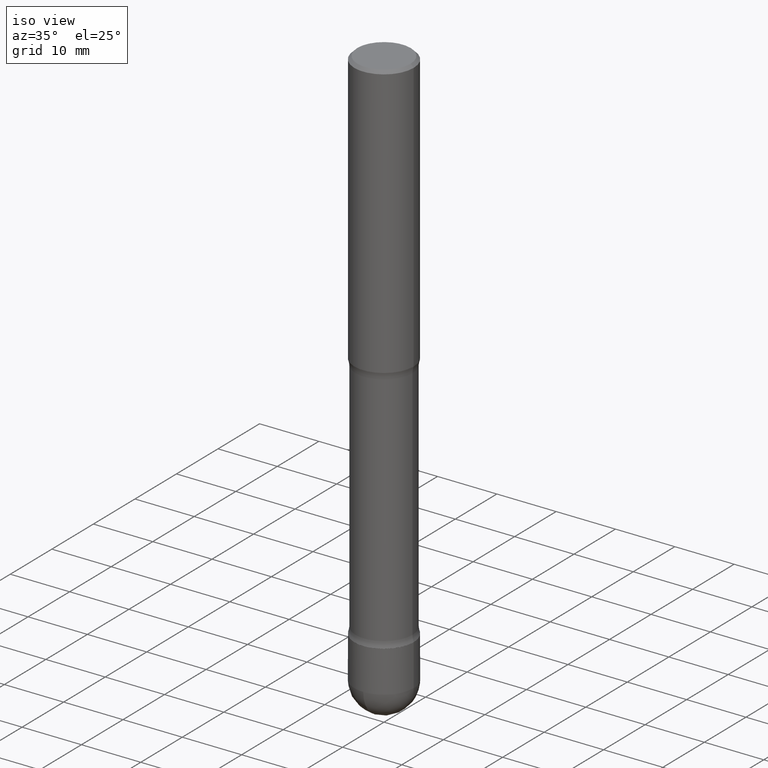
[diagram: clean part render]
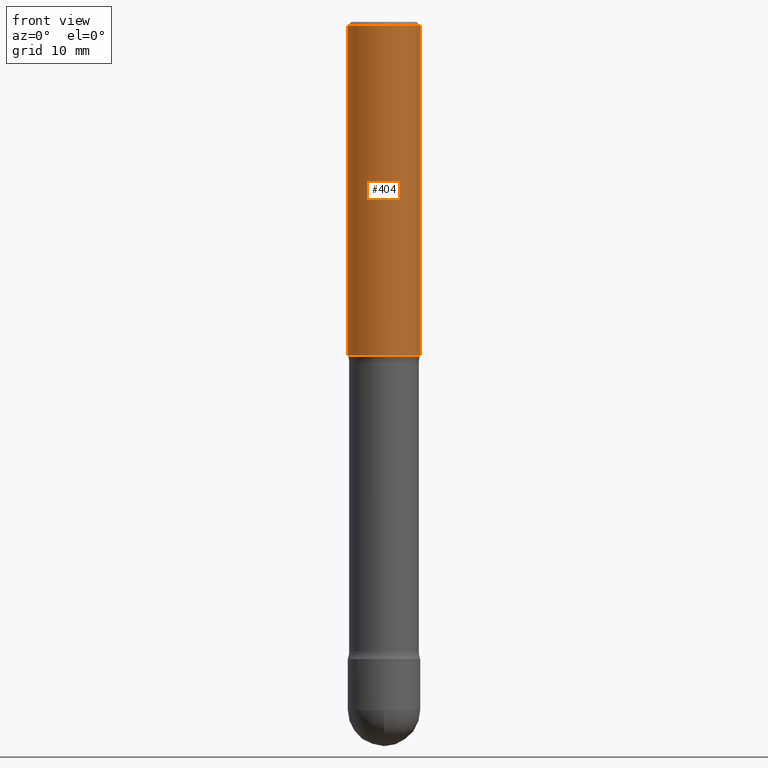
[diagram: tour spotlight — one face highlighted and labeled with its STEP entity id]
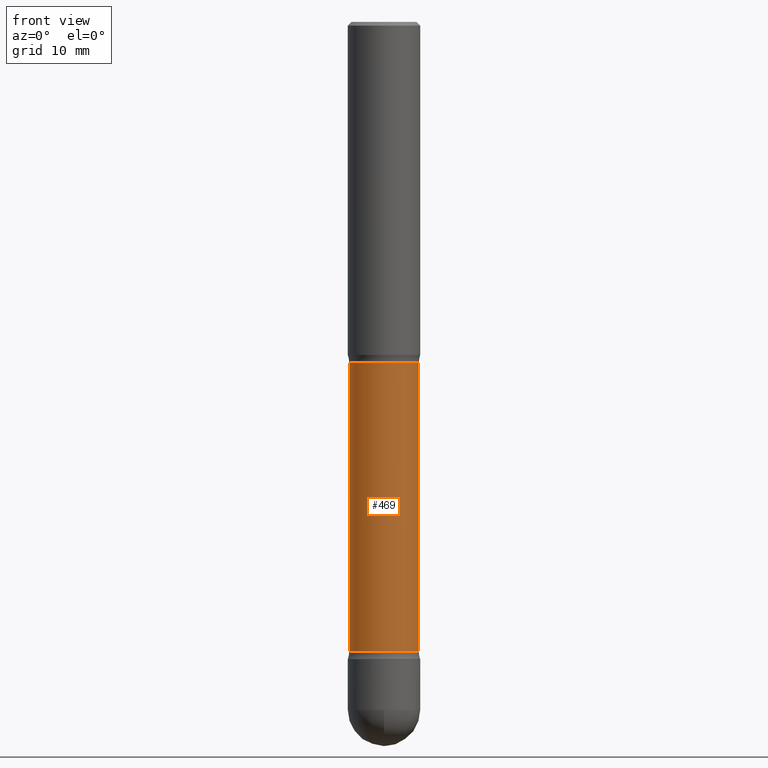
[diagram: tour spotlight — one face highlighted and labeled with its STEP entity id]
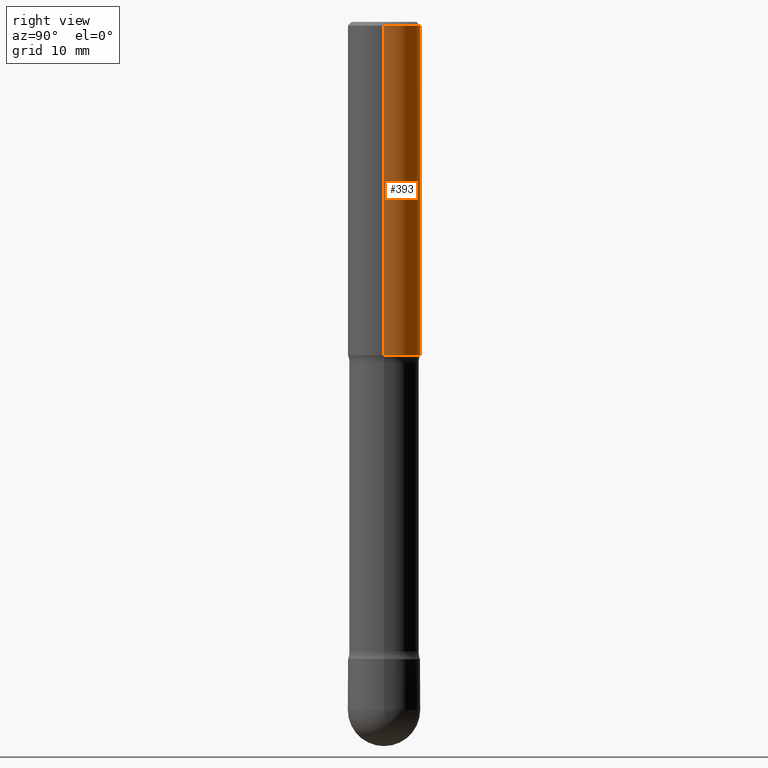
[diagram: tour spotlight — one face highlighted and labeled with its STEP entity id]
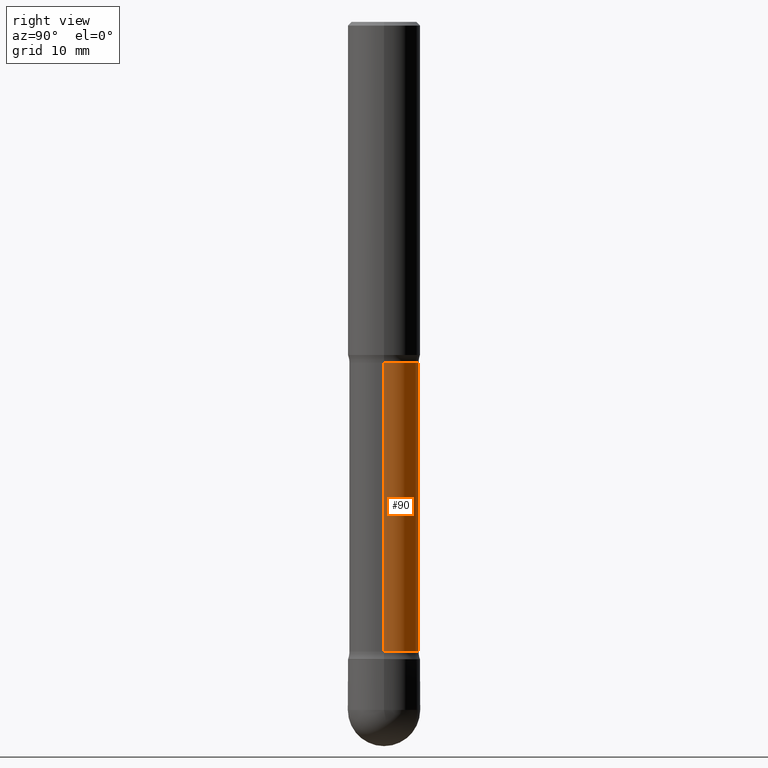
[diagram: tour spotlight — one face highlighted and labeled with its STEP entity id]
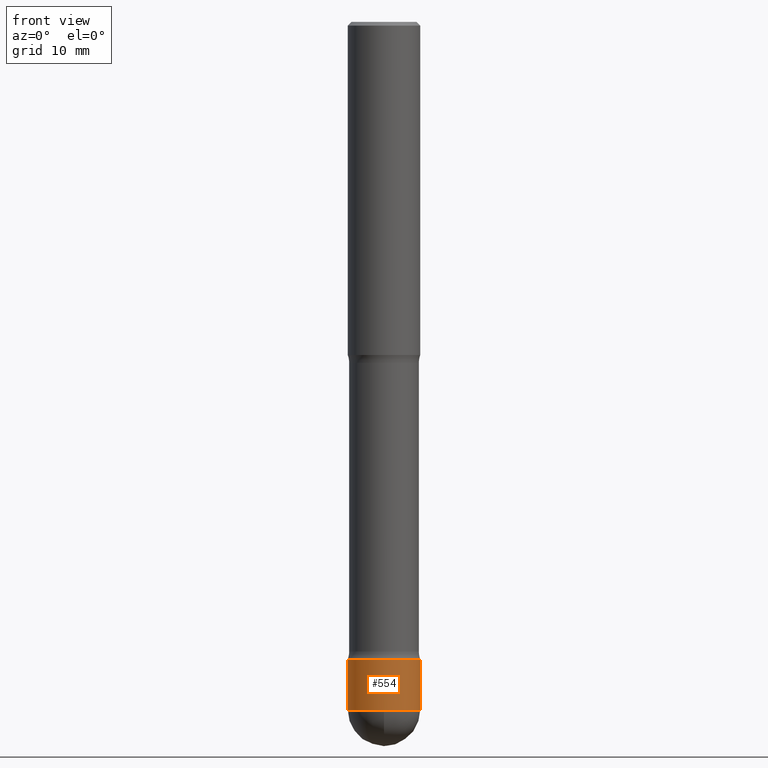
[diagram: tour spotlight — one face highlighted and labeled with its STEP entity id]
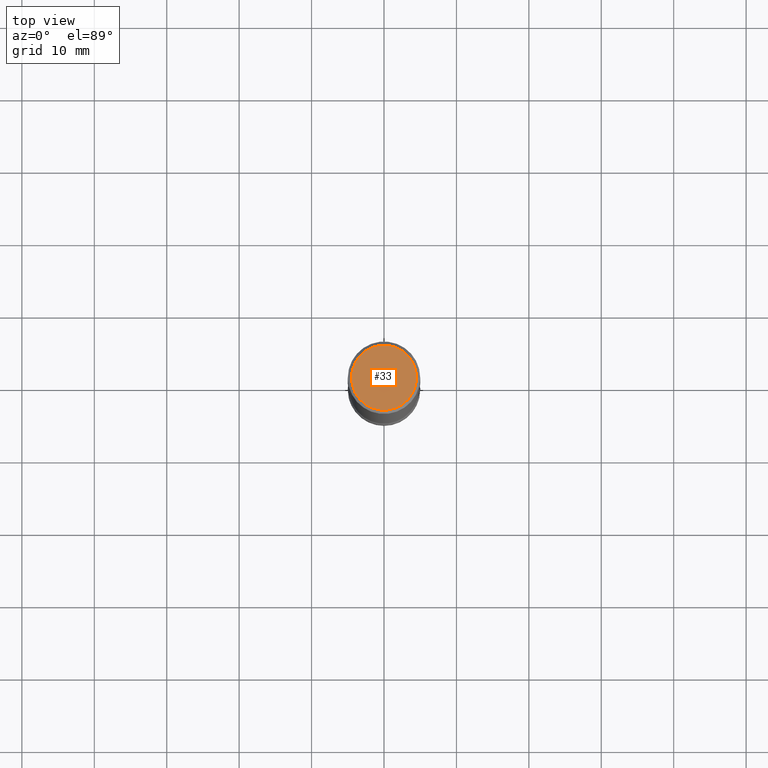
[diagram: tour spotlight — one face highlighted and labeled with its STEP entity id]
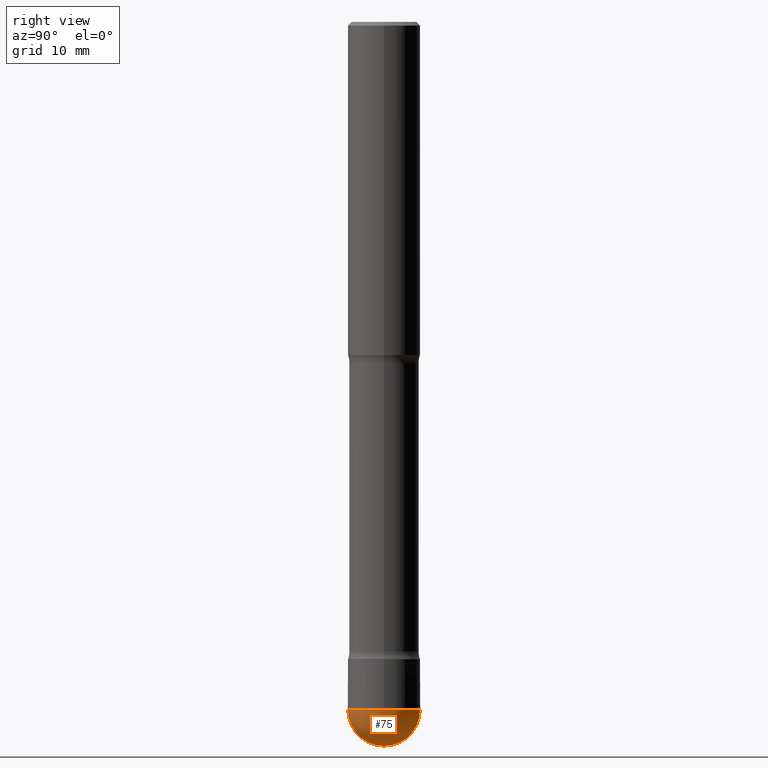
[diagram: tour spotlight — one face highlighted and labeled with its STEP entity id]
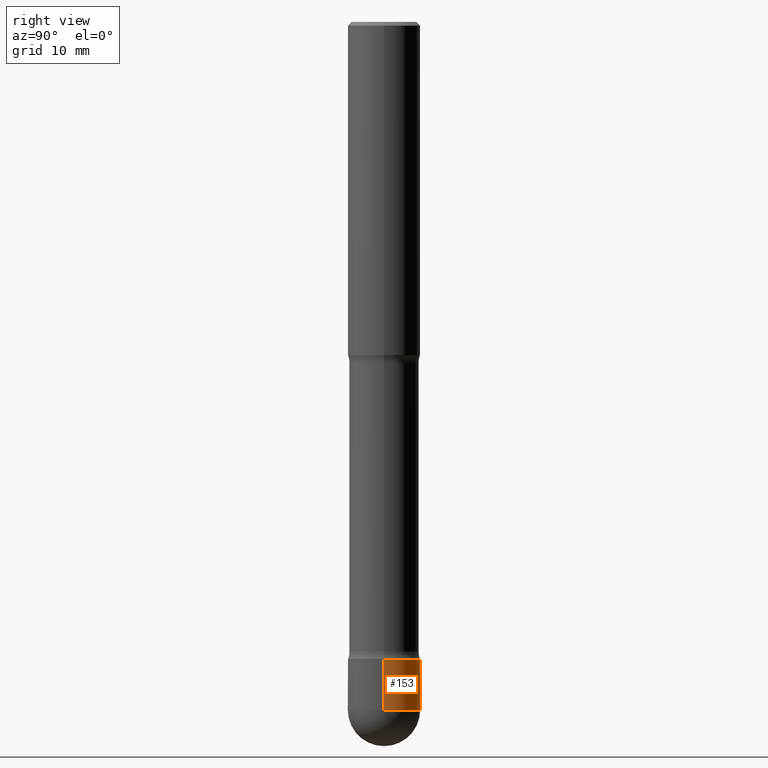
[diagram: tour spotlight — one face highlighted and labeled with its STEP entity id]
A machine part: a face-by-face anatomy tour. The part has 19 B-rep faces; the first image is the clean iso view, then the 8 largest visible faces are spotlighted one at a time (largest first), each with its STEP entity span.

Face 1 — front view, entity #404. In plain terms, the highlighted cylindrical surface (edge-blend (fillet) strip) has radius 5 mm, axis along (0, -0, -1).
Definition (entity closure, byte-faithful):
#82 = DIRECTION ( 'NONE',  ( 2.445468806185136597E-29, -3.491481338843145583E-15, -1.000000000000000000 ) ) ;
#86 = EDGE_CURVE ( 'NONE', #381, #384, #211, .T. ) ;
#96 = CARTESIAN_POINT ( 'NONE',  ( 0.1968499999999999417, -4.546940196572229414E-15, -1.811000000000002830 ) ) ;
#98 = ORIENTED_EDGE ( 'NONE', *, *, #86, .T. ) ;
#104 = CIRCLE ( 'NONE', #151, 0.1968499999999997752 ) ;
#107 = CARTESIAN_POINT ( 'NONE',  ( -0.1968499999999998307, -1.072199004345342213E-14, -3.464599999999999902 ) ) ;
#122 = CARTESIAN_POINT ( 'NONE',  ( 0.1968499999999998307, -1.344707527741728837E-14, -3.464599999999999902 ) ) ;
#125 = CIRCLE ( 'NONE', #439, 0.1968499999999999417 ) ;
#151 = AXIS2_PLACEMENT_3D ( 'NONE', #286, #503, #200 ) ;
#163 = VECTOR ( 'NONE', #379, 39.37007874015748143 ) ;
#180 = CYLINDRICAL_SURFACE ( 'NONE', #327, 0.1968499999999998307 ) ;
#187 = EDGE_CURVE ( 'NONE', #321, #381, #104, .T. ) ;
#200 = DIRECTION ( 'NONE',  ( -1.000000000000000000, 6.982962677686266711E-15, 0.000000000000000000 ) ) ;
#201 = EDGE_LOOP ( 'NONE', ( #230, #385, #98, #271 ) ) ;
#211 = LINE ( 'NONE', #107, #398 ) ;
#230 = ORIENTED_EDGE ( 'NONE', *, *, #258, .F. ) ;
#249 = DIRECTION ( 'NONE',  ( -1.000000000000000000, 6.982962677686265922E-15, 0.000000000000000000 ) ) ;
#250 = EDGE_CURVE ( 'NONE', #547, #384, #125, .T. ) ;
#258 = EDGE_CURVE ( 'NONE', #321, #547, #539, .T. ) ;
#271 = ORIENTED_EDGE ( 'NONE', *, *, #250, .F. ) ;
#272 = DIRECTION ( 'NONE',  ( -1.000000000000000000, 6.982962677686264344E-15, 0.000000000000000000 ) ) ;
#286 = CARTESIAN_POINT ( 'NONE',  ( 4.890937612370220610E-31, -6.982962677686216421E-17, -0.01999999999999978531 ) ) ;
#293 = DIRECTION ( 'NONE',  ( 2.445468806185136877E-29, -3.491481338843145188E-15, -1.000000000000000000 ) ) ;
#321 = VERTEX_POINT ( 'NONE', #464 ) ;
#327 = AXIS2_PLACEMENT_3D ( 'NONE', #471, #82, #272 ) ;
#342 = DIRECTION ( 'NONE',  ( 2.445468806185136597E-29, -3.491481338843145583E-15, -1.000000000000000000 ) ) ;
#346 = CARTESIAN_POINT ( 'NONE',  ( -0.1968499999999997752, 1.304766576325677916E-15, -0.01999999999999978531 ) ) ;
#350 = FACE_OUTER_BOUND ( 'NONE', #201, .T. ) ;
#354 = CARTESIAN_POINT ( 'NONE',  ( -0.1968499999999999417, -4.948476501542405431E-15, -1.811000000000002830 ) ) ;
#379 = DIRECTION ( 'NONE',  ( 2.445468806185136877E-29, -3.491481338843145188E-15, -1.000000000000000000 ) ) ;
#381 = VERTEX_POINT ( 'NONE', #346 ) ;
#384 = VERTEX_POINT ( 'NONE', #354 ) ;
#385 = ORIENTED_EDGE ( 'NONE', *, *, #187, .T. ) ;
#398 = VECTOR ( 'NONE', #293, 39.37007874015748143 ) ;
#404 = ADVANCED_FACE ( 'NONE', ( #350 ), #180, .T. ) ;
#439 = AXIS2_PLACEMENT_3D ( 'NONE', #552, #342, #249 ) ;
#464 = CARTESIAN_POINT ( 'NONE',  ( 0.1968499999999997752, -1.420318657638186558E-15, -0.01999999999999978531 ) ) ;
#471 = CARTESIAN_POINT ( 'NONE',  ( 8.472571225909024784E-29, -1.209658624655596216E-14, -3.464599999999999902 ) ) ;
#503 = DIRECTION ( 'NONE',  ( 2.445468806185136597E-29, -3.491481338843145583E-15, -1.000000000000000000 ) ) ;
#539 = LINE ( 'NONE', #122, #163 ) ;
#547 = VERTEX_POINT ( 'NONE', #96 ) ;
#552 = CARTESIAN_POINT ( 'NONE',  ( 4.428744008001289525E-29, -6.323072704644947039E-15, -1.811000000000002830 ) ) ;

Face 2 — front view, entity #469. In plain terms, the highlighted cylindrical surface (edge-blend (fillet) strip) has radius 4.8095 mm, axis along (0, -0, -1).
Definition (entity closure, byte-faithful):
#10 = VECTOR ( 'NONE', #544, 39.37007874015748143 ) ;
#13 = VERTEX_POINT ( 'NONE', #506 ) ;
#19 = AXIS2_PLACEMENT_3D ( 'NONE', #179, #270, #514 ) ;
#29 = EDGE_CURVE ( 'NONE', #529, #204, #329, .T. ) ;
#34 = AXIS2_PLACEMENT_3D ( 'NONE', #499, #252, #508 ) ;
#50 = ORIENTED_EDGE ( 'NONE', *, *, #267, .F. ) ;
#112 = ORIENTED_EDGE ( 'NONE', *, *, #229, .T. ) ;
#128 = FACE_OUTER_BOUND ( 'NONE', #167, .T. ) ;
#164 = EDGE_CURVE ( 'NONE', #13, #204, #190, .T. ) ;
#167 = EDGE_LOOP ( 'NONE', ( #50, #112, #316, #251 ) ) ;
#170 = CARTESIAN_POINT ( 'NONE',  ( 4.533035439980052208E-29, -6.471973229417174909E-15, -1.853646805273080567 ) ) ;
#176 = AXIS2_PLACEMENT_3D ( 'NONE', #170, #371, #454 ) ;
#179 = CARTESIAN_POINT ( 'NONE',  ( 8.472571225909024784E-29, -1.209658624655596216E-14, -3.464599999999999902 ) ) ;
#190 = CIRCLE ( 'NONE', #34, 0.1893499999999997130 ) ;
#204 = VERTEX_POINT ( 'NONE', #383 ) ;
#227 = CARTESIAN_POINT ( 'NONE',  ( -0.1893500000000000461, -5.149749246397279985E-15, -1.853646805273080567 ) ) ;
#229 = EDGE_CURVE ( 'NONE', #302, #529, #414, .T. ) ;
#251 = ORIENTED_EDGE ( 'NONE', *, *, #164, .F. ) ;
#252 = DIRECTION ( 'NONE',  ( 2.445468806185136597E-29, -3.491481338843145583E-15, -1.000000000000000000 ) ) ;
#267 = EDGE_CURVE ( 'NONE', #302, #13, #543, .T. ) ;
#270 = DIRECTION ( 'NONE',  ( 2.445468806185136597E-29, -3.491481338843145583E-15, -1.000000000000000000 ) ) ;
#302 = VERTEX_POINT ( 'NONE', #500 ) ;
#306 = CYLINDRICAL_SURFACE ( 'NONE', #19, 0.1893499999999998795 ) ;
#316 = ORIENTED_EDGE ( 'NONE', *, *, #29, .T. ) ;
#328 = CARTESIAN_POINT ( 'NONE',  ( 0.1893499999999998795, -1.339562154243400138E-14, -3.464599999999999902 ) ) ;
#329 = LINE ( 'NONE', #463, #10 ) ;
#371 = DIRECTION ( 'NONE',  ( 2.445468806185136597E-29, -3.491481338843145583E-15, -1.000000000000000000 ) ) ;
#383 = CARTESIAN_POINT ( 'NONE',  ( -0.1893499999999997130, -1.062546173876383700E-14, -3.421953194726920611 ) ) ;
#414 = CIRCLE ( 'NONE', #176, 0.1893500000000000461 ) ;
#454 = DIRECTION ( 'NONE',  ( -1.000000000000000000, 6.982962677686266711E-15, 0.000000000000000000 ) ) ;
#463 = CARTESIAN_POINT ( 'NONE',  ( -0.1893499999999998795, -1.077436226353606881E-14, -3.464599999999999902 ) ) ;
#469 = ADVANCED_FACE ( 'NONE', ( #128 ), #306, .T. ) ;
#472 = VECTOR ( 'NONE', #548, 39.37007874015748143 ) ;
#499 = CARTESIAN_POINT ( 'NONE',  ( 8.368279793930256495E-29, -1.194768572178372876E-14, -3.421953194726920611 ) ) ;
#500 = CARTESIAN_POINT ( 'NONE',  ( 0.1893500000000000461, -7.722285130400744090E-15, -1.853646805273080567 ) ) ;
#506 = CARTESIAN_POINT ( 'NONE',  ( 0.1893499999999997130, -1.050886477147849106E-14, -3.421953194726920611 ) ) ;
#508 = DIRECTION ( 'NONE',  ( -1.000000000000000000, 6.982962677686263555E-15, 0.000000000000000000 ) ) ;
#514 = DIRECTION ( 'NONE',  ( -1.000000000000000000, 6.982962677686267499E-15, 0.000000000000000000 ) ) ;
#529 = VERTEX_POINT ( 'NONE', #227 ) ;
#543 = LINE ( 'NONE', #328, #472 ) ;
#544 = DIRECTION ( 'NONE',  ( 2.445468806185136877E-29, -3.491481338843145188E-15, -1.000000000000000000 ) ) ;
#548 = DIRECTION ( 'NONE',  ( 2.445468806185136877E-29, -3.491481338843145188E-15, -1.000000000000000000 ) ) ;

Face 3 — right view, entity #393. In plain terms, the highlighted cylindrical surface (edge-blend (fillet) strip) has radius 5 mm, axis along (0, -0, -1).
Definition (entity closure, byte-faithful):
#3 = DIRECTION ( 'NONE',  ( 2.445468806185136597E-29, -3.491481338843145583E-15, -1.000000000000000000 ) ) ;
#23 = DIRECTION ( 'NONE',  ( 2.445468806185136597E-29, -3.491481338843145583E-15, -1.000000000000000000 ) ) ;
#53 = EDGE_LOOP ( 'NONE', ( #418, #368, #513, #522 ) ) ;
#67 = CIRCLE ( 'NONE', #391, 0.1968499999999999417 ) ;
#86 = EDGE_CURVE ( 'NONE', #381, #384, #211, .T. ) ;
#96 = CARTESIAN_POINT ( 'NONE',  ( 0.1968499999999999417, -4.546940196572229414E-15, -1.811000000000002830 ) ) ;
#107 = CARTESIAN_POINT ( 'NONE',  ( -0.1968499999999998307, -1.072199004345342213E-14, -3.464599999999999902 ) ) ;
#122 = CARTESIAN_POINT ( 'NONE',  ( 0.1968499999999998307, -1.344707527741728837E-14, -3.464599999999999902 ) ) ;
#163 = VECTOR ( 'NONE', #379, 39.37007874015748143 ) ;
#177 = AXIS2_PLACEMENT_3D ( 'NONE', #345, #429, #435 ) ;
#209 = DIRECTION ( 'NONE',  ( -1.000000000000000000, 6.982962677686266711E-15, 0.000000000000000000 ) ) ;
#211 = LINE ( 'NONE', #107, #398 ) ;
#235 = EDGE_CURVE ( 'NONE', #381, #321, #266, .T. ) ;
#239 = DIRECTION ( 'NONE',  ( -1.000000000000000000, 6.982962677686265922E-15, 0.000000000000000000 ) ) ;
#258 = EDGE_CURVE ( 'NONE', #321, #547, #539, .T. ) ;
#266 = CIRCLE ( 'NONE', #481, 0.1968499999999997752 ) ;
#281 = CARTESIAN_POINT ( 'NONE',  ( 4.428744008001289525E-29, -6.323072704644947039E-15, -1.811000000000002830 ) ) ;
#293 = DIRECTION ( 'NONE',  ( 2.445468806185136877E-29, -3.491481338843145188E-15, -1.000000000000000000 ) ) ;
#321 = VERTEX_POINT ( 'NONE', #464 ) ;
#345 = CARTESIAN_POINT ( 'NONE',  ( 8.472571225909024784E-29, -1.209658624655596216E-14, -3.464599999999999902 ) ) ;
#346 = CARTESIAN_POINT ( 'NONE',  ( -0.1968499999999997752, 1.304766576325677916E-15, -0.01999999999999978531 ) ) ;
#354 = CARTESIAN_POINT ( 'NONE',  ( -0.1968499999999999417, -4.948476501542405431E-15, -1.811000000000002830 ) ) ;
#368 = ORIENTED_EDGE ( 'NONE', *, *, #258, .T. ) ;
#379 = DIRECTION ( 'NONE',  ( 2.445468806185136877E-29, -3.491481338843145188E-15, -1.000000000000000000 ) ) ;
#381 = VERTEX_POINT ( 'NONE', #346 ) ;
#384 = VERTEX_POINT ( 'NONE', #354 ) ;
#386 = FACE_OUTER_BOUND ( 'NONE', #53, .T. ) ;
#391 = AXIS2_PLACEMENT_3D ( 'NONE', #281, #3, #239 ) ;
#393 = ADVANCED_FACE ( 'NONE', ( #386 ), #474, .T. ) ;
#398 = VECTOR ( 'NONE', #293, 39.37007874015748143 ) ;
#418 = ORIENTED_EDGE ( 'NONE', *, *, #235, .T. ) ;
#420 = CARTESIAN_POINT ( 'NONE',  ( 4.890937612370220610E-31, -6.982962677686216421E-17, -0.01999999999999978531 ) ) ;
#429 = DIRECTION ( 'NONE',  ( 2.445468806185136597E-29, -3.491481338843145583E-15, -1.000000000000000000 ) ) ;
#435 = DIRECTION ( 'NONE',  ( -1.000000000000000000, 6.982962677686264344E-15, 0.000000000000000000 ) ) ;
#464 = CARTESIAN_POINT ( 'NONE',  ( 0.1968499999999997752, -1.420318657638186558E-15, -0.01999999999999978531 ) ) ;
#474 = CYLINDRICAL_SURFACE ( 'NONE', #177, 0.1968499999999998307 ) ;
#481 = AXIS2_PLACEMENT_3D ( 'NONE', #420, #23, #209 ) ;
#513 = ORIENTED_EDGE ( 'NONE', *, *, #562, .F. ) ;
#522 = ORIENTED_EDGE ( 'NONE', *, *, #86, .F. ) ;
#539 = LINE ( 'NONE', #122, #163 ) ;
#547 = VERTEX_POINT ( 'NONE', #96 ) ;
#562 = EDGE_CURVE ( 'NONE', #384, #547, #67, .T. ) ;

Face 4 — right view, entity #90. In plain terms, the highlighted cylindrical surface (edge-blend (fillet) strip) has radius 4.8095 mm, axis along (0, -0, -1).
Definition (entity closure, byte-faithful):
#10 = VECTOR ( 'NONE', #544, 39.37007874015748143 ) ;
#13 = VERTEX_POINT ( 'NONE', #506 ) ;
#29 = EDGE_CURVE ( 'NONE', #529, #204, #329, .T. ) ;
#57 = CYLINDRICAL_SURFACE ( 'NONE', #425, 0.1893499999999998795 ) ;
#58 = DIRECTION ( 'NONE',  ( -1.000000000000000000, 6.982962677686263555E-15, 0.000000000000000000 ) ) ;
#68 = DIRECTION ( 'NONE',  ( -1.000000000000000000, 6.982962677686267499E-15, 0.000000000000000000 ) ) ;
#84 = CIRCLE ( 'NONE', #389, 0.1893499999999997130 ) ;
#90 = ADVANCED_FACE ( 'NONE', ( #415 ), #57, .T. ) ;
#93 = EDGE_LOOP ( 'NONE', ( #222, #437, #240, #478 ) ) ;
#113 = CARTESIAN_POINT ( 'NONE',  ( 8.368279793930256495E-29, -1.194768572178372876E-14, -3.421953194726920611 ) ) ;
#182 = EDGE_CURVE ( 'NONE', #204, #13, #84, .T. ) ;
#197 = DIRECTION ( 'NONE',  ( 2.445468806185136597E-29, -3.491481338843145583E-15, -1.000000000000000000 ) ) ;
#202 = DIRECTION ( 'NONE',  ( 2.445468806185136597E-29, -3.491481338843145583E-15, -1.000000000000000000 ) ) ;
#204 = VERTEX_POINT ( 'NONE', #383 ) ;
#222 = ORIENTED_EDGE ( 'NONE', *, *, #339, .T. ) ;
#227 = CARTESIAN_POINT ( 'NONE',  ( -0.1893500000000000461, -5.149749246397279985E-15, -1.853646805273080567 ) ) ;
#240 = ORIENTED_EDGE ( 'NONE', *, *, #182, .F. ) ;
#267 = EDGE_CURVE ( 'NONE', #302, #13, #543, .T. ) ;
#292 = CARTESIAN_POINT ( 'NONE',  ( 4.533035439980052208E-29, -6.471973229417174909E-15, -1.853646805273080567 ) ) ;
#302 = VERTEX_POINT ( 'NONE', #500 ) ;
#319 = CIRCLE ( 'NONE', #426, 0.1893500000000000461 ) ;
#328 = CARTESIAN_POINT ( 'NONE',  ( 0.1893499999999998795, -1.339562154243400138E-14, -3.464599999999999902 ) ) ;
#329 = LINE ( 'NONE', #463, #10 ) ;
#339 = EDGE_CURVE ( 'NONE', #529, #302, #319, .T. ) ;
#376 = DIRECTION ( 'NONE',  ( -1.000000000000000000, 6.982962677686266711E-15, 0.000000000000000000 ) ) ;
#383 = CARTESIAN_POINT ( 'NONE',  ( -0.1893499999999997130, -1.062546173876383700E-14, -3.421953194726920611 ) ) ;
#389 = AXIS2_PLACEMENT_3D ( 'NONE', #113, #494, #58 ) ;
#415 = FACE_OUTER_BOUND ( 'NONE', #93, .T. ) ;
#425 = AXIS2_PLACEMENT_3D ( 'NONE', #459, #197, #68 ) ;
#426 = AXIS2_PLACEMENT_3D ( 'NONE', #292, #202, #376 ) ;
#437 = ORIENTED_EDGE ( 'NONE', *, *, #267, .T. ) ;
#459 = CARTESIAN_POINT ( 'NONE',  ( 8.472571225909024784E-29, -1.209658624655596216E-14, -3.464599999999999902 ) ) ;
#463 = CARTESIAN_POINT ( 'NONE',  ( -0.1893499999999998795, -1.077436226353606881E-14, -3.464599999999999902 ) ) ;
#472 = VECTOR ( 'NONE', #548, 39.37007874015748143 ) ;
#478 = ORIENTED_EDGE ( 'NONE', *, *, #29, .F. ) ;
#494 = DIRECTION ( 'NONE',  ( 2.445468806185136597E-29, -3.491481338843145583E-15, -1.000000000000000000 ) ) ;
#500 = CARTESIAN_POINT ( 'NONE',  ( 0.1893500000000000461, -7.722285130400744090E-15, -1.853646805273080567 ) ) ;
#506 = CARTESIAN_POINT ( 'NONE',  ( 0.1893499999999997130, -1.050886477147849106E-14, -3.421953194726920611 ) ) ;
#529 = VERTEX_POINT ( 'NONE', #227 ) ;
#543 = LINE ( 'NONE', #328, #472 ) ;
#544 = DIRECTION ( 'NONE',  ( 2.445468806185136877E-29, -3.491481338843145188E-15, -1.000000000000000000 ) ) ;
#548 = DIRECTION ( 'NONE',  ( 2.445468806185136877E-29, -3.491481338843145188E-15, -1.000000000000000000 ) ) ;

Face 5 — front view, entity #554. In plain terms, the highlighted cylindrical surface (edge-blend (fillet) strip) has radius 5 mm, axis along (-0, 0, 1).
Definition (entity closure, byte-faithful):
#12 = ORIENTED_EDGE ( 'NONE', *, *, #517, .T. ) ;
#35 = EDGE_CURVE ( 'NONE', #561, #377, #142, .T. ) ;
#43 = EDGE_LOOP ( 'NONE', ( #89, #380, #282, #12, #79 ) ) ;
#66 = EDGE_CURVE ( 'NONE', #561, #396, #452, .T. ) ;
#73 = DIRECTION ( 'NONE',  ( 1.000000000000000000, -6.982962677686263555E-15, 0.000000000000000000 ) ) ;
#78 = AXIS2_PLACEMENT_3D ( 'NONE', #555, #88, #264 ) ;
#79 = ORIENTED_EDGE ( 'NONE', *, *, #492, .F. ) ;
#80 = CARTESIAN_POINT ( 'NONE',  ( 8.472571225909024784E-29, -1.209658624655596216E-14, -3.464599999999999902 ) ) ;
#88 = DIRECTION ( 'NONE',  ( -2.445468806185136597E-29, 3.491481338843145583E-15, 1.000000000000000000 ) ) ;
#89 = ORIENTED_EDGE ( 'NONE', *, *, #66, .F. ) ;
#95 = VECTOR ( 'NONE', #99, 39.37007874015748143 ) ;
#99 = DIRECTION ( 'NONE',  ( -2.445468806185136877E-29, 3.491481338843145188E-15, 1.000000000000000000 ) ) ;
#115 = CARTESIAN_POINT ( 'NONE',  ( 9.146420155453339430E-29, -1.305866392947419182E-14, -3.740150000000000308 ) ) ;
#126 = CIRCLE ( 'NONE', #248, 0.1968499999999993588 ) ;
#142 = CIRCLE ( 'NONE', #311, 0.1968499999999993033 ) ;
#144 = FACE_OUTER_BOUND ( 'NONE', #43, .T. ) ;
#148 = CARTESIAN_POINT ( 'NONE',  ( -0.1968499999999993033, -1.117892171267132551E-14, -3.740150000000000308 ) ) ;
#166 = AXIS2_PLACEMENT_3D ( 'NONE', #189, #488, #403 ) ;
#175 = CARTESIAN_POINT ( 'NONE',  ( -1.374596203102446353E-15, -0.1968500000000124872, -3.740149999999999864 ) ) ;
#184 = CARTESIAN_POINT ( 'NONE',  ( 0.1968499999999993588, -1.347118244965850061E-14, -3.464599999999999902 ) ) ;
#189 = CARTESIAN_POINT ( 'NONE',  ( 0.000000000000000000, 0.000000000000000000, 0.000000000000000000 ) ) ;
#248 = AXIS2_PLACEMENT_3D ( 'NONE', #80, #470, #353 ) ;
#261 = CIRCLE ( 'NONE', #78, 0.1968499999999993033 ) ;
#264 = DIRECTION ( 'NONE',  ( 1.000000000000000000, -6.982962677686263555E-15, 0.000000000000000000 ) ) ;
#282 = ORIENTED_EDGE ( 'NONE', *, *, #372, .T. ) ;
#308 = CARTESIAN_POINT ( 'NONE',  ( -0.1968499999999993588, -1.117892171267132393E-14, -3.464599999999999902 ) ) ;
#311 = AXIS2_PLACEMENT_3D ( 'NONE', #115, #497, #73 ) ;
#352 = VERTEX_POINT ( 'NONE', #564 ) ;
#353 = DIRECTION ( 'NONE',  ( 1.000000000000000000, -6.982962677686271444E-15, 0.000000000000000000 ) ) ;
#372 = EDGE_CURVE ( 'NONE', #377, #352, #261, .T. ) ;
#377 = VERTEX_POINT ( 'NONE', #175 ) ;
#380 = ORIENTED_EDGE ( 'NONE', *, *, #35, .T. ) ;
#396 = VERTEX_POINT ( 'NONE', #308 ) ;
#400 = CARTESIAN_POINT ( 'NONE',  ( 0.1968499999999993311, -1.374596203102536875E-15, 9.598753983154267227E-30 ) ) ;
#403 = DIRECTION ( 'NONE',  ( 1.000000000000000000, -6.982962677686266711E-15, 4.876176775795935793E-29 ) ) ;
#411 = DIRECTION ( 'NONE',  ( -2.445468806185136877E-29, 3.491481338843145188E-15, 1.000000000000000000 ) ) ;
#452 = LINE ( 'NONE', #455, #534 ) ;
#455 = CARTESIAN_POINT ( 'NONE',  ( -0.1968499999999993311, 1.398703375343752463E-15, -9.682923725166748645E-30 ) ) ;
#470 = DIRECTION ( 'NONE',  ( -2.445468806185136597E-29, 3.491481338843145583E-15, 1.000000000000000000 ) ) ;
#480 = LINE ( 'NONE', #400, #95 ) ;
#488 = DIRECTION ( 'NONE',  ( -2.445468806185136597E-29, 3.491481338843145583E-15, 1.000000000000000000 ) ) ;
#492 = EDGE_CURVE ( 'NONE', #396, #520, #126, .T. ) ;
#497 = DIRECTION ( 'NONE',  ( -2.445468806185136597E-29, 3.491481338843145583E-15, 1.000000000000000000 ) ) ;
#517 = EDGE_CURVE ( 'NONE', #352, #520, #480, .T. ) ;
#520 = VERTEX_POINT ( 'NONE', #184 ) ;
#533 = CYLINDRICAL_SURFACE ( 'NONE', #166, 0.1968499999999993311 ) ;
#534 = VECTOR ( 'NONE', #411, 39.37007874015748143 ) ;
#554 = ADVANCED_FACE ( 'NONE', ( #144 ), #533, .T. ) ;
#555 = CARTESIAN_POINT ( 'NONE',  ( 9.146420155453339430E-29, -1.305866392947419182E-14, -3.740150000000000308 ) ) ;
#561 = VERTEX_POINT ( 'NONE', #148 ) ;
#564 = CARTESIAN_POINT ( 'NONE',  ( 0.1968499999999993033, -1.395222129111761465E-14, -3.740150000000000308 ) ) ;

Face 6 — top view, entity #33. In plain terms, the highlighted planar face has unit normal (-0, 0, 1).
Definition (entity closure, byte-faithful):
#14 = PLANE ( 'NONE',  #294 ) ;
#16 = DIRECTION ( 'NONE',  ( 2.445468806185136597E-29, -3.491481338843145583E-15, -1.000000000000000000 ) ) ;
#24 = FACE_OUTER_BOUND ( 'NONE', #121, .T. ) ;
#33 = ADVANCED_FACE ( 'NONE', ( #24 ), #14, .T. ) ;
#64 = CIRCLE ( 'NONE', #218, 0.1768499999999997851 ) ;
#71 = DIRECTION ( 'NONE',  ( -2.438088387897960049E-29, 3.491481338843145188E-15, 1.000000000000000000 ) ) ;
#110 = CARTESIAN_POINT ( 'NONE',  ( 0.000000000000000000, 0.000000000000000000, 0.000000000000000000 ) ) ;
#121 = EDGE_LOOP ( 'NONE', ( #374, #498 ) ) ;
#165 = DIRECTION ( 'NONE',  ( 2.445468806185136597E-29, -3.491481338843145583E-15, -1.000000000000000000 ) ) ;
#171 = VERTEX_POINT ( 'NONE', #537 ) ;
#195 = DIRECTION ( 'NONE',  ( -1.000000000000000000, 6.982962677686266711E-15, -4.876176775795935793E-29 ) ) ;
#207 = DIRECTION ( 'NONE',  ( 1.000000000000000000, -6.982962677686265922E-15, 4.876176775795935793E-29 ) ) ;
#218 = AXIS2_PLACEMENT_3D ( 'NONE', #110, #16, #195 ) ;
#236 = AXIS2_PLACEMENT_3D ( 'NONE', #366, #165, #340 ) ;
#279 = EDGE_CURVE ( 'NONE', #171, #515, #64, .T. ) ;
#285 = EDGE_CURVE ( 'NONE', #515, #171, #361, .T. ) ;
#294 = AXIS2_PLACEMENT_3D ( 'NONE', #300, #71, #207 ) ;
#300 = CARTESIAN_POINT ( 'NONE',  ( 1.234936949548814617E-15, 0.1768499999999997851, -6.153342185293593634E-16 ) ) ;
#340 = DIRECTION ( 'NONE',  ( -1.000000000000000000, 6.982962677686266711E-15, -4.876176775795935793E-29 ) ) ;
#361 = CIRCLE ( 'NONE', #236, 0.1768499999999997851 ) ;
#366 = CARTESIAN_POINT ( 'NONE',  ( 0.000000000000000000, 0.000000000000000000, 0.000000000000000000 ) ) ;
#374 = ORIENTED_EDGE ( 'NONE', *, *, #285, .F. ) ;
#485 = CARTESIAN_POINT ( 'NONE',  ( -0.1768499999999997851, 1.234936949548814815E-15, -8.623518627995101929E-30 ) ) ;
#498 = ORIENTED_EDGE ( 'NONE', *, *, #279, .F. ) ;
#515 = VERTEX_POINT ( 'NONE', #485 ) ;
#537 = CARTESIAN_POINT ( 'NONE',  ( 0.1768499999999997851, -1.316798864272040169E-15, 8.922390245354084233E-30 ) ) ;

Face 7 — right view, entity #75. In plain terms, the highlighted spherical surface has radius 5 mm.
Definition (entity closure, byte-faithful):
#39 = CARTESIAN_POINT ( 'NONE',  ( 1.398703375343844365E-15, 0.1968499999999863970, -3.740150000000000752 ) ) ;
#55 = CIRCLE ( 'NONE', #540, 0.1968499999999993033 ) ;
#56 = CIRCLE ( 'NONE', #399, 0.1968499999999995809 ) ;
#59 = EDGE_CURVE ( 'NONE', #352, #373, #55, .T. ) ;
#62 = FACE_OUTER_BOUND ( 'NONE', #130, .T. ) ;
#75 = ADVANCED_FACE ( 'NONE', ( #62 ), #326, .T. ) ;
#78 = AXIS2_PLACEMENT_3D ( 'NONE', #555, #88, #264 ) ;
#88 = DIRECTION ( 'NONE',  ( -2.445468806185136597E-29, 3.491481338843145583E-15, 1.000000000000000000 ) ) ;
#117 = AXIS2_PLACEMENT_3D ( 'NONE', #245, #493, #157 ) ;
#118 = DIRECTION ( 'NONE',  ( 7.105427357600999492E-15, 1.000000000000000000, 0.000000000000000000 ) ) ;
#130 = EDGE_LOOP ( 'NONE', ( #214, #287, #484, #364 ) ) ;
#135 = DIRECTION ( 'NONE',  ( -6.982962677686266711E-15, -1.000000000000000000, 0.000000000000000000 ) ) ;
#149 = VERTEX_POINT ( 'NONE', #232 ) ;
#157 = DIRECTION ( 'NONE',  ( -6.982962677686266711E-15, -1.000000000000000000, 2.775563112689123006E-15 ) ) ;
#175 = CARTESIAN_POINT ( 'NONE',  ( -1.374596203102446353E-15, -0.1968500000000124872, -3.740149999999999864 ) ) ;
#188 = EDGE_CURVE ( 'NONE', #149, #373, #504, .T. ) ;
#214 = ORIENTED_EDGE ( 'NONE', *, *, #421, .F. ) ;
#217 = CARTESIAN_POINT ( 'NONE',  ( 9.129586207050842305E-29, -1.308277110171540879E-14, -3.740150000000000308 ) ) ;
#232 = CARTESIAN_POINT ( 'NONE',  ( 9.602559767347136862E-29, -1.378212278938728887E-14, -3.937000000000000277 ) ) ;
#244 = DIRECTION ( 'NONE',  ( 1.000000000000000000, -7.105427357601001070E-15, 4.926315508542082329E-29 ) ) ;
#245 = CARTESIAN_POINT ( 'NONE',  ( 9.129586207050842305E-29, -1.308277110171540879E-14, -3.740150000000000308 ) ) ;
#257 = CARTESIAN_POINT ( 'NONE',  ( 9.146420155453339430E-29, -1.305866392947419182E-14, -3.740150000000000308 ) ) ;
#261 = CIRCLE ( 'NONE', #78, 0.1968499999999993033 ) ;
#264 = DIRECTION ( 'NONE',  ( 1.000000000000000000, -6.982962677686263555E-15, 0.000000000000000000 ) ) ;
#276 = AXIS2_PLACEMENT_3D ( 'NONE', #289, #244, #118 ) ;
#287 = ORIENTED_EDGE ( 'NONE', *, *, #188, .T. ) ;
#289 = CARTESIAN_POINT ( 'NONE',  ( 9.129586207050842305E-29, -1.308277110171540879E-14, -3.740150000000000308 ) ) ;
#290 = DIRECTION ( 'NONE',  ( 1.000000000000000000, -6.982962677686263555E-15, 0.000000000000000000 ) ) ;
#326 = SPHERICAL_SURFACE ( 'NONE', #117, 0.1968499999999995809 ) ;
#333 = DIRECTION ( 'NONE',  ( -2.445468806185136597E-29, 3.491481338843145583E-15, 1.000000000000000000 ) ) ;
#352 = VERTEX_POINT ( 'NONE', #564 ) ;
#364 = ORIENTED_EDGE ( 'NONE', *, *, #372, .F. ) ;
#372 = EDGE_CURVE ( 'NONE', #377, #352, #261, .T. ) ;
#373 = VERTEX_POINT ( 'NONE', #39 ) ;
#377 = VERTEX_POINT ( 'NONE', #175 ) ;
#399 = AXIS2_PLACEMENT_3D ( 'NONE', #217, #525, #135 ) ;
#421 = EDGE_CURVE ( 'NONE', #149, #377, #56, .T. ) ;
#484 = ORIENTED_EDGE ( 'NONE', *, *, #59, .F. ) ;
#493 = DIRECTION ( 'NONE',  ( 1.000000000000000000, -6.982962677686266711E-15, 4.883557194083113462E-29 ) ) ;
#504 = CIRCLE ( 'NONE', #276, 0.1968499999999995809 ) ;
#525 = DIRECTION ( 'NONE',  ( -1.000000000000000000, 6.982962677686265922E-15, -4.883557194083112340E-29 ) ) ;
#540 = AXIS2_PLACEMENT_3D ( 'NONE', #257, #333, #290 ) ;
#555 = CARTESIAN_POINT ( 'NONE',  ( 9.146420155453339430E-29, -1.305866392947419182E-14, -3.740150000000000308 ) ) ;
#564 = CARTESIAN_POINT ( 'NONE',  ( 0.1968499999999993033, -1.395222129111761465E-14, -3.740150000000000308 ) ) ;

Face 8 — right view, entity #153. In plain terms, the highlighted cylindrical surface (edge-blend (fillet) strip) has radius 5 mm, axis along (-0, 0, 1).
Definition (entity closure, byte-faithful):
#8 = EDGE_LOOP ( 'NONE', ( #445, #330, #348, #40, #441 ) ) ;
#15 = DIRECTION ( 'NONE',  ( -2.445468806185136597E-29, 3.491481338843145583E-15, 1.000000000000000000 ) ) ;
#25 = CARTESIAN_POINT ( 'NONE',  ( 0.000000000000000000, 0.000000000000000000, 0.000000000000000000 ) ) ;
#39 = CARTESIAN_POINT ( 'NONE',  ( 1.398703375343844365E-15, 0.1968499999999863970, -3.740150000000000752 ) ) ;
#40 = ORIENTED_EDGE ( 'NONE', *, *, #517, .F. ) ;
#44 = AXIS2_PLACEMENT_3D ( 'NONE', #297, #461, #512 ) ;
#55 = CIRCLE ( 'NONE', #540, 0.1968499999999993033 ) ;
#59 = EDGE_CURVE ( 'NONE', #352, #373, #55, .T. ) ;
#66 = EDGE_CURVE ( 'NONE', #561, #396, #452, .T. ) ;
#95 = VECTOR ( 'NONE', #99, 39.37007874015748143 ) ;
#99 = DIRECTION ( 'NONE',  ( -2.445468806185136877E-29, 3.491481338843145188E-15, 1.000000000000000000 ) ) ;
#148 = CARTESIAN_POINT ( 'NONE',  ( -0.1968499999999993033, -1.117892171267132551E-14, -3.740150000000000308 ) ) ;
#152 = DIRECTION ( 'NONE',  ( -2.445468806185136597E-29, 3.491481338843145583E-15, 1.000000000000000000 ) ) ;
#153 = ADVANCED_FACE ( 'NONE', ( #315 ), #185, .T. ) ;
#184 = CARTESIAN_POINT ( 'NONE',  ( 0.1968499999999993588, -1.347118244965850061E-14, -3.464599999999999902 ) ) ;
#185 = CYLINDRICAL_SURFACE ( 'NONE', #523, 0.1968499999999993311 ) ;
#194 = EDGE_CURVE ( 'NONE', #520, #396, #467, .T. ) ;
#247 = AXIS2_PLACEMENT_3D ( 'NONE', #496, #152, #301 ) ;
#257 = CARTESIAN_POINT ( 'NONE',  ( 9.146420155453339430E-29, -1.305866392947419182E-14, -3.740150000000000308 ) ) ;
#262 = EDGE_CURVE ( 'NONE', #373, #561, #516, .T. ) ;
#290 = DIRECTION ( 'NONE',  ( 1.000000000000000000, -6.982962677686263555E-15, 0.000000000000000000 ) ) ;
#297 = CARTESIAN_POINT ( 'NONE',  ( 8.472571225909024784E-29, -1.209658624655596216E-14, -3.464599999999999902 ) ) ;
#301 = DIRECTION ( 'NONE',  ( 1.000000000000000000, -6.982962677686263555E-15, 0.000000000000000000 ) ) ;
#308 = CARTESIAN_POINT ( 'NONE',  ( -0.1968499999999993588, -1.117892171267132393E-14, -3.464599999999999902 ) ) ;
#315 = FACE_OUTER_BOUND ( 'NONE', #8, .T. ) ;
#330 = ORIENTED_EDGE ( 'NONE', *, *, #66, .T. ) ;
#333 = DIRECTION ( 'NONE',  ( -2.445468806185136597E-29, 3.491481338843145583E-15, 1.000000000000000000 ) ) ;
#337 = DIRECTION ( 'NONE',  ( 1.000000000000000000, -6.982962677686266711E-15, 4.876176775795935793E-29 ) ) ;
#348 = ORIENTED_EDGE ( 'NONE', *, *, #194, .F. ) ;
#352 = VERTEX_POINT ( 'NONE', #564 ) ;
#373 = VERTEX_POINT ( 'NONE', #39 ) ;
#396 = VERTEX_POINT ( 'NONE', #308 ) ;
#400 = CARTESIAN_POINT ( 'NONE',  ( 0.1968499999999993311, -1.374596203102536875E-15, 9.598753983154267227E-30 ) ) ;
#411 = DIRECTION ( 'NONE',  ( -2.445468806185136877E-29, 3.491481338843145188E-15, 1.000000000000000000 ) ) ;
#441 = ORIENTED_EDGE ( 'NONE', *, *, #59, .T. ) ;
#445 = ORIENTED_EDGE ( 'NONE', *, *, #262, .T. ) ;
#452 = LINE ( 'NONE', #455, #534 ) ;
#455 = CARTESIAN_POINT ( 'NONE',  ( -0.1968499999999993311, 1.398703375343752463E-15, -9.682923725166748645E-30 ) ) ;
#461 = DIRECTION ( 'NONE',  ( -2.445468806185136597E-29, 3.491481338843145583E-15, 1.000000000000000000 ) ) ;
#467 = CIRCLE ( 'NONE', #44, 0.1968499999999993588 ) ;
#480 = LINE ( 'NONE', #400, #95 ) ;
#496 = CARTESIAN_POINT ( 'NONE',  ( 9.146420155453339430E-29, -1.305866392947419182E-14, -3.740150000000000308 ) ) ;
#512 = DIRECTION ( 'NONE',  ( 1.000000000000000000, -6.982962677686271444E-15, 0.000000000000000000 ) ) ;
#516 = CIRCLE ( 'NONE', #247, 0.1968499999999993033 ) ;
#517 = EDGE_CURVE ( 'NONE', #352, #520, #480, .T. ) ;
#520 = VERTEX_POINT ( 'NONE', #184 ) ;
#523 = AXIS2_PLACEMENT_3D ( 'NONE', #25, #15, #337 ) ;
#534 = VECTOR ( 'NONE', #411, 39.37007874015748143 ) ;
#540 = AXIS2_PLACEMENT_3D ( 'NONE', #257, #333, #290 ) ;
#561 = VERTEX_POINT ( 'NONE', #148 ) ;
#564 = CARTESIAN_POINT ( 'NONE',  ( 0.1968499999999993033, -1.395222129111761465E-14, -3.740150000000000308 ) ) ;